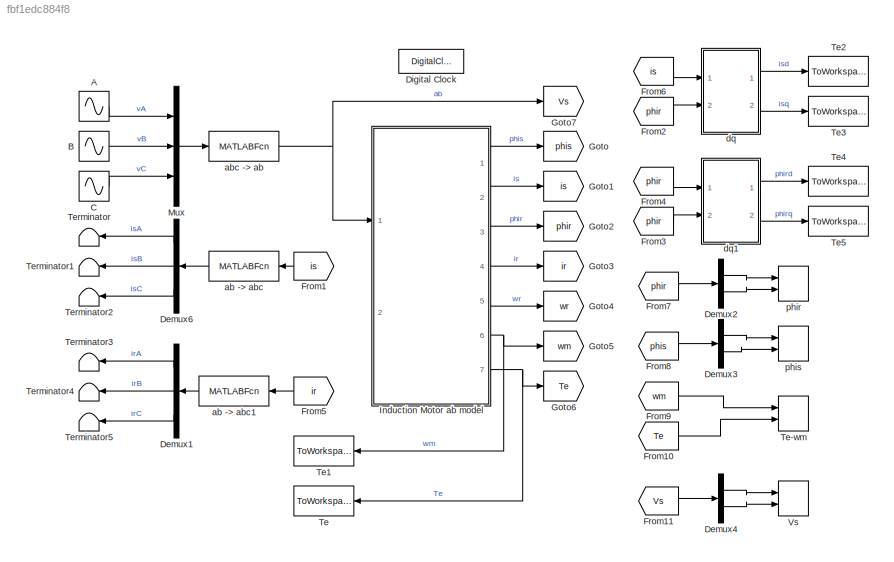
MODEL slx_fbf1edc884f8
KIND model
CONFIG AbsTol = auto
CONFIG EnableMultiTasking = off
CONFIG FixedStep = auto
CONFIG MaxStep = auto
CONFIG MinStep = auto
CONFIG RelTol = 1e-3
CONFIG SampleTimeConstraint = Unconstrained
CONFIG SolverName = VariableStepAuto
CONFIG StartTime = 0.0
CONFIG StopTime = 5
BLOCK [Sin] A
  Amplitude = Amp
  Frequency = om
  Phase = 0 + pi/2
  Ports = [0, 1]
  SampleTime = 0
BLOCK [Sin] B
  Amplitude = Amp
  Frequency = om
  Phase = -2/3*pi + pi/2
  Ports = [0, 1]
  SampleTime = 0
BLOCK [Sin] C
  Amplitude = Amp
  Frequency = om
  Phase = 2/3*pi + pi/2
  Ports = [0, 1]
  SampleTime = 0
BLOCK [Demux] Demux1
  NameLocation = top
  Outputs = 3
  Ports = [1, 3]
BLOCK [Demux] Demux2
  Outputs = 2
  Ports = [1, 2]
BLOCK [Demux] Demux3
  Outputs = 2
  Ports = [1, 2]
BLOCK [Demux] Demux4
  Outputs = 2
  Ports = [1, 2]
BLOCK [Demux] Demux6
  NameLocation = top
  Outputs = 3
  Ports = [1, 3]
BLOCK [DigitalClock] Digital Clock
  SampleTime = 0.001
BLOCK [From] From1
  GotoTag = is
  NameLocation = top
BLOCK [From] From10
  GotoTag = Te
BLOCK [From] From11
  GotoTag = Vs
BLOCK [From] From2
  GotoTag = phir
BLOCK [From] From3
  GotoTag = phir
BLOCK [From] From4
  GotoTag = phir
BLOCK [From] From5
  GotoTag = ir
  NameLocation = top
BLOCK [From] From6
  GotoTag = is
BLOCK [From] From7
  GotoTag = phir
BLOCK [From] From8
  GotoTag = phis
BLOCK [From] From9
  GotoTag = wm
BLOCK [Goto] Goto
  GotoTag = phis
BLOCK [Goto] Goto1
  GotoTag = is
BLOCK [Goto] Goto2
  GotoTag = phir
BLOCK [Goto] Goto3
  GotoTag = ir
BLOCK [Goto] Goto4
  GotoTag = wr
BLOCK [Goto] Goto5
  GotoTag = wm
BLOCK [Goto] Goto6
  GotoTag = Te
BLOCK [Goto] Goto7
  GotoTag = Vs
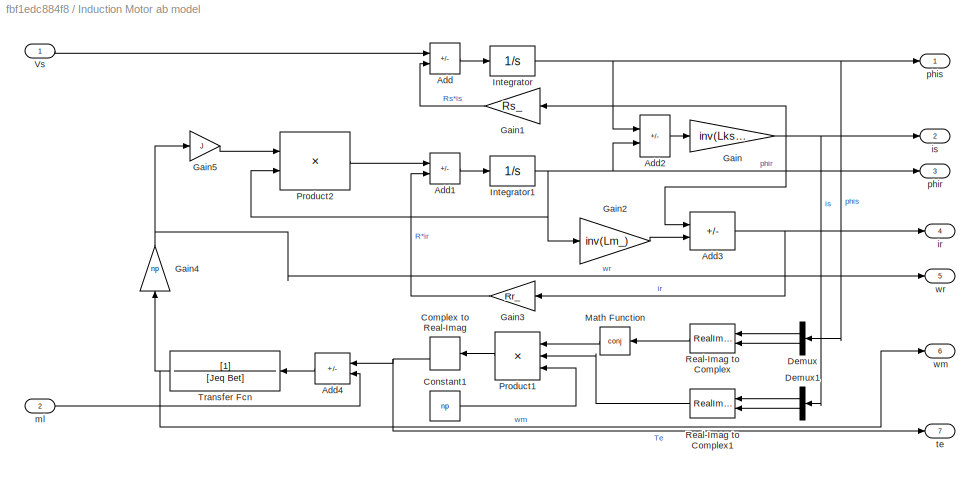
BLOCK [SubSystem] Induction Motor ab model
  Ports = [2, 7]
  RequestExecContextInheritance = off
BLOCK [Sum] Induction Motor ab model/Add
  IconShape = rectangular
  Inputs = +-
  Ports = [2, 1]
BLOCK [Sum] Induction Motor ab model/Add1
  IconShape = rectangular
  InputSameDT = on
  Inputs = +-
  Ports = [2, 1]
BLOCK [Sum] Induction Motor ab model/Add2
  IconShape = rectangular
  Inputs = +-
  Ports = [2, 1]
BLOCK [Sum] Induction Motor ab model/Add3
  IconShape = rectangular
  Inputs = -+
  Ports = [2, 1]
BLOCK [Sum] Induction Motor ab model/Add4
  IconShape = rectangular
  Inputs = +-
  NameLocation = top
  Ports = [2, 1]
BLOCK [ComplexToRealImag] Induction Motor ab model/Complex to Real-Imag
  NameLocation = top
  Ports = [1, 2]
BLOCK [Constant] Induction Motor ab model/Constant1
  Value = np
BLOCK [Demux] Induction Motor ab model/Demux
  NameLocation = top
  Outputs = 2
  Ports = [1, 2]
BLOCK [Demux] Induction Motor ab model/Demux1
  NameLocation = top
  Outputs = 2
  Ports = [1, 2]
BLOCK [Gain] Induction Motor ab model/Gain
  Gain = inv(Lks_)
  Multiplication = Matrix(K*u)
BLOCK [Gain] Induction Motor ab model/Gain1
  Gain = Rs_
  Multiplication = Matrix(K*u)
  NameLocation = top
BLOCK [Gain] Induction Motor ab model/Gain2
  Gain = inv(Lm_)
  Multiplication = Matrix(K*u)
BLOCK [Gain] Induction Motor ab model/Gain3
  Gain = Rr_
  Multiplication = Matrix(K*u)
  NameLocation = top
BLOCK [Gain] Induction Motor ab model/Gain4
  Gain = np
  NameLocation = right
BLOCK [Gain] Induction Motor ab model/Gain5
  Gain = J
BLOCK [Integrator] Induction Motor ab model/Integrator
  Ports = [1, 1]
BLOCK [Integrator] Induction Motor ab model/Integrator1
  Ports = [1, 1]
BLOCK [Math] Induction Motor ab model/Math Function
  NameLocation = top
  Operator = conj
  Ports = [1, 1]
  SignedPower = on
BLOCK [Product] Induction Motor ab model/Product1
  Inputs = 3
  NameLocation = top
  Ports = [3, 1]
BLOCK [Product] Induction Motor ab model/Product2
  Multiplication = Matrix(*)
  Ports = [2, 1]
BLOCK [RealImagToComplex] Induction Motor ab model/Real-Imag to Complex
  NameLocation = top
  Ports = [2, 1]
BLOCK [RealImagToComplex] Induction Motor ab model/Real-Imag to Complex1
  NameLocation = top
  Ports = [2, 1]
BLOCK [TransferFcn] Induction Motor ab model/Transfer Fcn
  Denominator = [Jeq Bet]
  NameLocation = top
BLOCK [Inport] Induction Motor ab model/Vs
BLOCK [Outport] Induction Motor ab model/ir
  Port = 4
BLOCK [Outport] Induction Motor ab model/is
  Port = 2
BLOCK [Inport] Induction Motor ab model/ml
  Port = 2
BLOCK [Outport] Induction Motor ab model/phir
  Port = 3
BLOCK [Outport] Induction Motor ab model/phis
BLOCK [Outport] Induction Motor ab model/te
  Port = 7
BLOCK [Outport] Induction Motor ab model/wm
  Port = 6
BLOCK [Outport] Induction Motor ab model/wr
  Port = 5
BLOCK [Mux] Mux
  DisplayOption = bar
  Inputs = 3
  Ports = [3, 1]
BLOCK [ToWorkspace] Te
  FixptAsFi = on
  MaxDataPoints = inf
  NameLocation = top
  Ports = [1]
  SampleTime = -1
  SaveFormat = Timeseries
  VariableName = Te
BLOCK [Record] Te-wm
  CompatibilityTag = XY
  FileSettingsInternal = {"entries":[{"content":{"excelSettings":{"content":{},"type":"Streamout.ExcelSettings"}},"type":"Streamout.FileSettingStorage","uuid":"bc4ad7bc-467e-46b2-91ec-95eac65564ba"}],"packageUris":["http://schema.mathworks.com/mf0/streamout_blocks/R2020a"],"version":"1.0"}
  Layout = [1 1]
  Ports = [2]
  SignalsInternal = {"entries":[{"content":{"signals":[{"content":{"blockPath":["IMAlphaBeta/Te-wm"],"channel":[],"dimensions":[1],"domain":"IMAlphaBeta/Te-wm","lineColor":"#a2142f","plots":[1],"port":1,"sid":[""],"signalID":2755,"signalName":"From9"},"type":"RecordBlkView.Signal","uuid":"5b3775f7-8d11-4cf7-8a02-3f1a7cbb4ad2"},{"content":{"blockPath":["IMAlphaBeta/Te-wm"],"channel":[],"dimensions":[1],"domain":"IMAlp...<+360ch>
  VisualizationBindings = {"xyplotplugin":{"info":[{"series":[{"bindingParametersList":[{"parameter":"X-Axis","signalID":2755,"signalName":"From9"},{"parameter":"Y-Axis","signalID":2759,"signalName":"From10"}],"seriesID":64705}],"subplotID":1}]}}
  st = -1
BLOCK [ToWorkspace] Te1
  FixptAsFi = on
  MaxDataPoints = inf
  NameLocation = top
  Ports = [1]
  SampleTime = -1
  SaveFormat = Timeseries
  VariableName = wm
BLOCK [ToWorkspace] Te2
  FixptAsFi = on
  MaxDataPoints = inf
  Ports = [1]
  SampleTime = -1
  SaveFormat = Timeseries
  VariableName = isd
BLOCK [ToWorkspace] Te3
  FixptAsFi = on
  MaxDataPoints = inf
  Ports = [1]
  SampleTime = -1
  SaveFormat = Timeseries
  VariableName = isq
BLOCK [ToWorkspace] Te4
  FixptAsFi = on
  MaxDataPoints = inf
  Ports = [1]
  SampleTime = -1
  SaveFormat = Timeseries
  VariableName = phird
BLOCK [ToWorkspace] Te5
  FixptAsFi = on
  MaxDataPoints = inf
  Ports = [1]
  SampleTime = -1
  SaveFormat = Timeseries
  VariableName = phirq
BLOCK [Terminator] Terminator
  NameLocation = top
BLOCK [Terminator] Terminator1
  NameLocation = top
BLOCK [Terminator] Terminator2
  NameLocation = top
BLOCK [Terminator] Terminator3
  NameLocation = top
BLOCK [Terminator] Terminator4
  NameLocation = top
BLOCK [Terminator] Terminator5
  NameLocation = top
BLOCK [Record] Vs
  CompatibilityTag = XY
  FileSettingsInternal = {"entries":[{"content":{"excelSettings":{"content":{},"type":"Streamout.ExcelSettings"}},"type":"Streamout.FileSettingStorage","uuid":"9dcb3003-91f4-4e84-9f7d-864a3e800a25"}],"packageUris":["http://schema.mathworks.com/mf0/streamout_blocks/R2020a"],"version":"1.0"}
  Layout = [1 1]
  Ports = [2]
  SignalsInternal = {"entries":[{"content":{"signals":[{"content":{"blockPath":["IMAlphaBeta/Vs"],"channel":[],"dimensions":[1],"domain":"IMAlphaBeta/Vs","lineColor":"#a2142f","plots":[1],"port":1,"sid":[""],"signalID":2763,"signalName":"Demux4:1"},"type":"RecordBlkView.Signal","uuid":"79428a3f-19da-4e99-9ef9-002d2b85a82d"},{"content":{"blockPath":["IMAlphaBeta/Vs"],"channel":[],"dimensions":[1],"domain":"IMAlphaBeta...<+353ch>
  VisualizationBindings = {"xyplotplugin":{"info":[{"series":[{"bindingParametersList":[{"parameter":"X-Axis","signalID":2763,"signalName":"Demux4:1"},{"parameter":"Y-Axis","signalID":2767,"signalName":"Demux4:2"}],"seriesID":30778}],"subplotID":1}]}}
  st = -1
BLOCK [MATLABFcn] ab -> abc
  MATLABFcn = Inv_Clarke(u)
  NameLocation = top
  OutputDimensions = 3
  Ports = [1, 1]
BLOCK [MATLABFcn] ab -> abc1
  MATLABFcn = Inv_Clarke(u)
  NameLocation = top
  OutputDimensions = 3
  Ports = [1, 1]
BLOCK [MATLABFcn] abc -> ab
  MATLABFcn = Clarke(u)
  OutputDimensions = 2
  Ports = [1, 1]
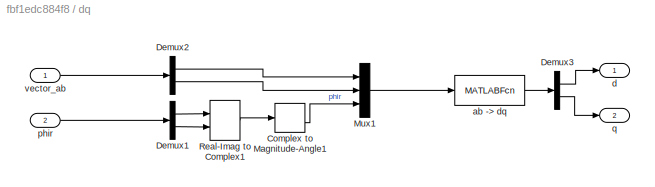
BLOCK [SubSystem] dq
  Ports = [2, 2]
  RequestExecContextInheritance = off
BLOCK [ComplexToMagnitudeAngle] dq/Complex to Magnitude-Angle1
  Ports = [1, 2]
BLOCK [Demux] dq/Demux1
  Outputs = 2
  Ports = [1, 2]
BLOCK [Demux] dq/Demux2
  Outputs = 2
  Ports = [1, 2]
BLOCK [Demux] dq/Demux3
  Outputs = 2
  Ports = [1, 2]
BLOCK [Mux] dq/Mux1
  DisplayOption = bar
  Inputs = 3
  Ports = [3, 1]
BLOCK [RealImagToComplex] dq/Real-Imag to Complex1
  Ports = [2, 1]
BLOCK [MATLABFcn] dq/ab -> dq
  MATLABFcn = Park(u)
  Ports = [1, 1]
BLOCK [Outport] dq/d
BLOCK [Inport] dq/phir
  Port = 2
BLOCK [Outport] dq/q
  Port = 2
BLOCK [Inport] dq/vector_ab
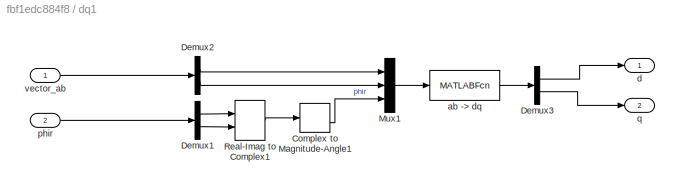
BLOCK [SubSystem] dq1
  Ports = [2, 2]
  RequestExecContextInheritance = off
BLOCK [ComplexToMagnitudeAngle] dq1/Complex to Magnitude-Angle1
  Ports = [1, 2]
BLOCK [Demux] dq1/Demux1
  Outputs = 2
  Ports = [1, 2]
BLOCK [Demux] dq1/Demux2
  Outputs = 2
  Ports = [1, 2]
BLOCK [Demux] dq1/Demux3
  Outputs = 2
  Ports = [1, 2]
BLOCK [Mux] dq1/Mux1
  DisplayOption = bar
  Inputs = 3
  Ports = [3, 1]
BLOCK [RealImagToComplex] dq1/Real-Imag to Complex1
  Ports = [2, 1]
BLOCK [MATLABFcn] dq1/ab -> dq
  MATLABFcn = Park(u)
  Ports = [1, 1]
BLOCK [Outport] dq1/d
BLOCK [Inport] dq1/phir
  Port = 2
BLOCK [Outport] dq1/q
  Port = 2
BLOCK [Inport] dq1/vector_ab
BLOCK [Record] phir
  CompatibilityTag = XY
  FileSettingsInternal = {"entries":[{"content":{"excelSettings":{"content":{},"type":"Streamout.ExcelSettings"}},"type":"Streamout.FileSettingStorage","uuid":"b957c152-4c0d-4bc4-ba22-64160a85e37f"}],"packageUris":["http://schema.mathworks.com/mf0/streamout_blocks/R2020a"],"version":"1.0"}
  Layout = [1 1]
  Ports = [2]
  SignalsInternal = {"entries":[{"content":{"signals":[{"content":{"blockPath":["IMAlphaBeta/phir"],"channel":[],"dimensions":[1],"domain":"IMAlphaBeta/phir","lineColor":"#a2142f","plots":[1],"port":1,"sid":[""],"signalID":2771,"signalName":"Demux2:1"},"type":"RecordBlkView.Signal","uuid":"fb801944-a432-4bb5-ae37-52e7019635a8"},{"content":{"blockPath":["IMAlphaBeta/phir"],"channel":[],"dimensions":[1],"domain":"IMAlp...<+361ch>
  VisualizationBindings = {"xyplotplugin":{"info":[{"series":[{"bindingParametersList":[{"parameter":"X-Axis","signalID":2771,"signalName":"Demux2:1"},{"parameter":"Y-Axis","signalID":2775,"signalName":"Demux2:2"}],"seriesID":34586}],"subplotID":1}]}}
  st = -1
BLOCK [Record] phis
  CompatibilityTag = XY
  FileSettingsInternal = {"entries":[{"content":{"excelSettings":{"content":{},"type":"Streamout.ExcelSettings"}},"type":"Streamout.FileSettingStorage","uuid":"e917278c-ae61-4bfc-ad42-b2daaaa60b47"}],"packageUris":["http://schema.mathworks.com/mf0/streamout_blocks/R2020a"],"version":"1.0"}
  Layout = [1 1]
  Ports = [2]
  SignalsInternal = {"entries":[{"content":{"signals":[{"content":{"blockPath":["IMAlphaBeta/phis"],"channel":[],"dimensions":[1],"domain":"IMAlphaBeta/phis","lineColor":"#a2142f","plots":[1],"port":1,"sid":[""],"signalID":2779,"signalName":"Demux3:1"},"type":"RecordBlkView.Signal","uuid":"d707ecb1-c22f-4e68-9267-e2aa8215428d"},{"content":{"blockPath":["IMAlphaBeta/phis"],"channel":[],"dimensions":[1],"domain":"IMAlp...<+361ch>
  VisualizationBindings = {"xyplotplugin":{"info":[{"series":[{"bindingParametersList":[{"parameter":"X-Axis","signalID":2779,"signalName":"Demux3:1"},{"parameter":"Y-Axis","signalID":2783,"signalName":"Demux3:2"}],"seriesID":6872}],"subplotID":1}]}}
  st = -1
LINE A:1 -> Mux:1
LINE B:1 -> Mux:2
LINE C:1 -> Mux:3
LINE Demux1:1 -> Terminator3:1
LINE Demux1:2 -> Terminator4:1
LINE Demux1:3 -> Terminator5:1
LINE Demux2:1 -> phir:1
LINE Demux2:2 -> phir:2
LINE Demux3:1 -> phis:1
LINE Demux3:2 -> phis:2
LINE Demux4:1 -> Vs:1
LINE Demux4:2 -> Vs:2
LINE Demux6:1 -> Terminator:1
LINE Demux6:2 -> Terminator1:1
LINE Demux6:3 -> Terminator2:1
LINE From10:1 -> Te-wm:2
LINE From11:1 -> Demux4:1
LINE From1:1 -> ab -> abc:1
LINE From2:1 -> dq:2
LINE From3:1 -> dq1:2
LINE From4:1 -> dq1:1
LINE From5:1 -> ab -> abc1:1
LINE From6:1 -> dq:1
LINE From7:1 -> Demux2:1
LINE From8:1 -> Demux3:1
LINE From9:1 -> Te-wm:1
LINE Induction Motor ab model/Add1:1 -> Induction Motor ab model/Integrator1:1
LINE Induction Motor ab model/Add2:1 -> Induction Motor ab model/Gain:1
NET Induction Motor ab model/Add3:1 -> Induction Motor ab model/Gain3:1, Induction Motor ab model/ir:1
LINE Induction Motor ab model/Add4:1 -> Induction Motor ab model/Transfer Fcn:1
LINE Induction Motor ab model/Add:1 -> Induction Motor ab model/Integrator:1
NET Induction Motor ab model/Complex to Real-Imag:2 -> Induction Motor ab model/Add4:1, Induction Motor ab model/te:1
LINE Induction Motor ab model/Constant1:1 -> Induction Motor ab model/Product1:3
LINE Induction Motor ab model/Demux1:1 -> Induction Motor ab model/Real-Imag to Complex1:1
LINE Induction Motor ab model/Demux1:2 -> Induction Motor ab model/Real-Imag to Complex1:2
LINE Induction Motor ab model/Demux:1 -> Induction Motor ab model/Real-Imag to Complex:1
LINE Induction Motor ab model/Demux:2 -> Induction Motor ab model/Real-Imag to Complex:2
LINE Induction Motor ab model/Gain1:1 -> Induction Motor ab model/Add:2
LINE Induction Motor ab model/Gain2:1 -> Induction Motor ab model/Add3:2
LINE Induction Motor ab model/Gain3:1 -> Induction Motor ab model/Add1:2
NET Induction Motor ab model/Gain4:1 -> Induction Motor ab model/Gain5:1, Induction Motor ab model/wr:1
LINE Induction Motor ab model/Gain5:1 -> Induction Motor ab model/Product2:1
NET Induction Motor ab model/Gain:1 -> Induction Motor ab model/Add3:1, Induction Motor ab model/Demux1:1, Induction Motor ab model/Gain1:1, Induction Motor ab model/is:1
NET Induction Motor ab model/Integrator1:1 -> Induction Motor ab model/Add2:2, Induction Motor ab model/Gain2:1, Induction Motor ab model/Product2:2, Induction Motor ab model/phir:1
NET Induction Motor ab model/Integrator:1 -> Induction Motor ab model/Add2:1, Induction Motor ab model/Demux:1, Induction Motor ab model/phis:1
LINE Induction Motor ab model/Math Function:1 -> Induction Motor ab model/Product1:1
LINE Induction Motor ab model/Product1:1 -> Induction Motor ab model/Complex to Real-Imag:1
LINE Induction Motor ab model/Product2:1 -> Induction Motor ab model/Add1:1
LINE Induction Motor ab model/Real-Imag to Complex1:1 -> Induction Motor ab model/Product1:2
LINE Induction Motor ab model/Real-Imag to Complex:1 -> Induction Motor ab model/Math Function:1
NET Induction Motor ab model/Transfer Fcn:1 -> Induction Motor ab model/Gain4:1, Induction Motor ab model/wm:1
LINE Induction Motor ab model/Vs:1 -> Induction Motor ab model/Add:1
LINE Induction Motor ab model/ml:1 -> Induction Motor ab model/Add4:2
LINE Induction Motor ab model:1 -> Goto:1
LINE Induction Motor ab model:2 -> Goto1:1
LINE Induction Motor ab model:3 -> Goto2:1
LINE Induction Motor ab model:4 -> Goto3:1
LINE Induction Motor ab model:5 -> Goto4:1
NET Induction Motor ab model:6 -> Goto5:1, Te1:1
NET Induction Motor ab model:7 -> Goto6:1, Te:1
LINE Mux:1 -> abc -> ab:1
LINE ab -> abc1:1 -> Demux1:1
LINE ab -> abc:1 -> Demux6:1
NET abc -> ab:1 -> Goto7:1, Induction Motor ab model:1
LINE dq/Complex to Magnitude-Angle1:2 -> dq/Mux1:3
LINE dq/Demux1:1 -> dq/Real-Imag to Complex1:1
LINE dq/Demux1:2 -> dq/Real-Imag to Complex1:2
LINE dq/Demux2:1 -> dq/Mux1:1
LINE dq/Demux2:2 -> dq/Mux1:2
LINE dq/Demux3:1 -> dq/d:1
LINE dq/Demux3:2 -> dq/q:1
LINE dq/Mux1:1 -> dq/ab -> dq:1
LINE dq/Real-Imag to Complex1:1 -> dq/Complex to Magnitude-Angle1:1
LINE dq/ab -> dq:1 -> dq/Demux3:1
LINE dq/phir:1 -> dq/Demux1:1
LINE dq/vector_ab:1 -> dq/Demux2:1
LINE dq1/Complex to Magnitude-Angle1:2 -> dq1/Mux1:3
LINE dq1/Demux1:1 -> dq1/Real-Imag to Complex1:1
LINE dq1/Demux1:2 -> dq1/Real-Imag to Complex1:2
LINE dq1/Demux2:1 -> dq1/Mux1:1
LINE dq1/Demux2:2 -> dq1/Mux1:2
LINE dq1/Demux3:1 -> dq1/d:1
LINE dq1/Demux3:2 -> dq1/q:1
LINE dq1/Mux1:1 -> dq1/ab -> dq:1
LINE dq1/Real-Imag to Complex1:1 -> dq1/Complex to Magnitude-Angle1:1
LINE dq1/ab -> dq:1 -> dq1/Demux3:1
LINE dq1/phir:1 -> dq1/Demux1:1
LINE dq1/vector_ab:1 -> dq1/Demux2:1
LINE dq1:1 -> Te4:1
LINE dq1:2 -> Te5:1
LINE dq:1 -> Te2:1
LINE dq:2 -> Te3:1
note: NET lines group one-source signal fan-out (src -> all destinations, sorted); 1:1 wires keep LINE
